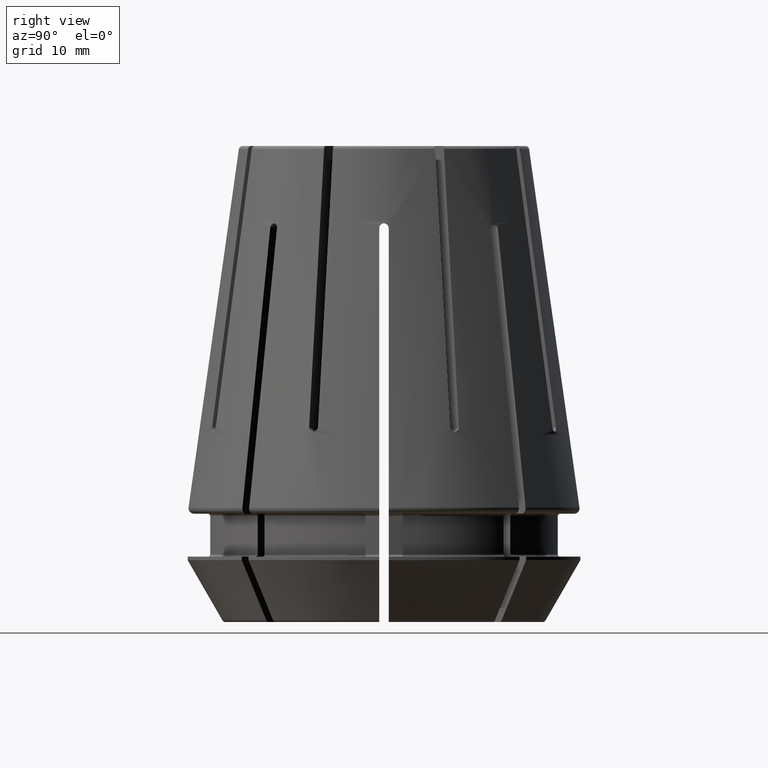
[diagram: clean part render]
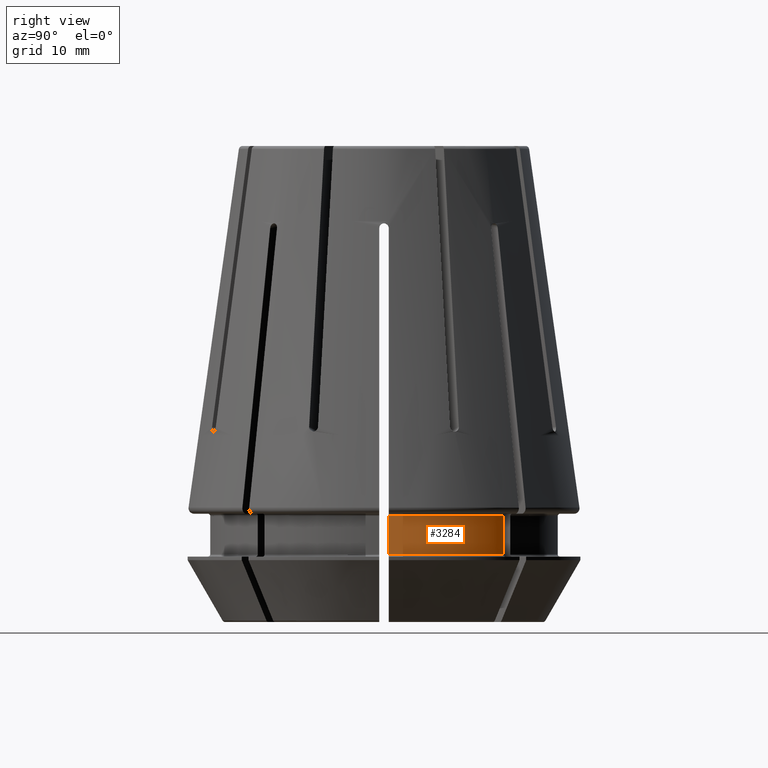
[diagram: same view with one face highlighted and labeled with its STEP entity id]
A machine part, right view. The second image highlights one B-rep face of the part: STEP entity #3284.
In plain terms, the highlighted cylindrical surface (partial cylindrical patch) has radius 14.6 mm, axis along (0, 0, 1).
Its self-contained STEP definition (entity closure, byte-faithful):
#182=LINE('',#5852,#326);
#183=LINE('',#5857,#327);
#326=VECTOR('',#4239,1000.);
#327=VECTOR('',#4242,1000.);
#383=CYLINDRICAL_SURFACE('',#3586,14.6);
#1077=ORIENTED_EDGE('',*,*,#2053,.F.);
#1078=ORIENTED_EDGE('',*,*,#2054,.T.);
#1079=ORIENTED_EDGE('',*,*,#2055,.T.);
#1080=ORIENTED_EDGE('',*,*,#2056,.T.);
#2053=EDGE_CURVE('',#2497,#2498,#182,.F.);
#2054=EDGE_CURVE('',#2497,#2499,#2689,.F.);
#2055=EDGE_CURVE('',#2499,#2500,#183,.F.);
#2056=EDGE_CURVE('',#2500,#2498,#2690,.F.);
#2497=VERTEX_POINT('',#5853);
#2498=VERTEX_POINT('',#5854);
#2499=VERTEX_POINT('',#5856);
#2500=VERTEX_POINT('',#5858);
#2689=CIRCLE('',#3587,14.6);
#2690=CIRCLE('',#3588,14.6);
#2845=EDGE_LOOP('',(#1077,#1078,#1079,#1080));
#3033=FACE_BOUND('',#2845,.T.);
#3284=ADVANCED_FACE('',(#3033),#383,.T.);
#3586=AXIS2_PLACEMENT_3D('',#5851,#4237,#4238);
#3587=AXIS2_PLACEMENT_3D('',#5855,#4240,#4241);
#3588=AXIS2_PLACEMENT_3D('',#5859,#4243,#4244);
#4237=DIRECTION('',(0.,0.,1.));
#4238=DIRECTION('',(1.,0.,0.));
#4239=DIRECTION('',(0.,0.,1.));
#4240=DIRECTION('',(0.,0.,1.));
#4241=DIRECTION('',(1.,0.,0.));
#4242=DIRECTION('',(0.,0.,1.));
#4243=DIRECTION('',(0.,0.,-1.));
#4244=DIRECTION('',(-1.,0.,0.));
#5851=CARTESIAN_POINT('',(0.,0.,60.));
#5852=CARTESIAN_POINT('',(10.6027264327498,10.0370410078005,60.));
#5853=CARTESIAN_POINT('',(10.6027264327498,10.0370410078005,-0.199999999999999));
#5854=CARTESIAN_POINT('',(10.6027264327498,10.0370410078005,-3.4));
#5855=CARTESIAN_POINT('',(0.,0.,-0.199999999999999));
#5856=CARTESIAN_POINT('',(14.5945195193264,0.4,-0.199999999999999));
#5857=CARTESIAN_POINT('',(14.5945195193264,0.4,60.));
#5858=CARTESIAN_POINT('',(14.5945195193264,0.4,-3.4));
#5859=CARTESIAN_POINT('',(0.,0.,-3.4));